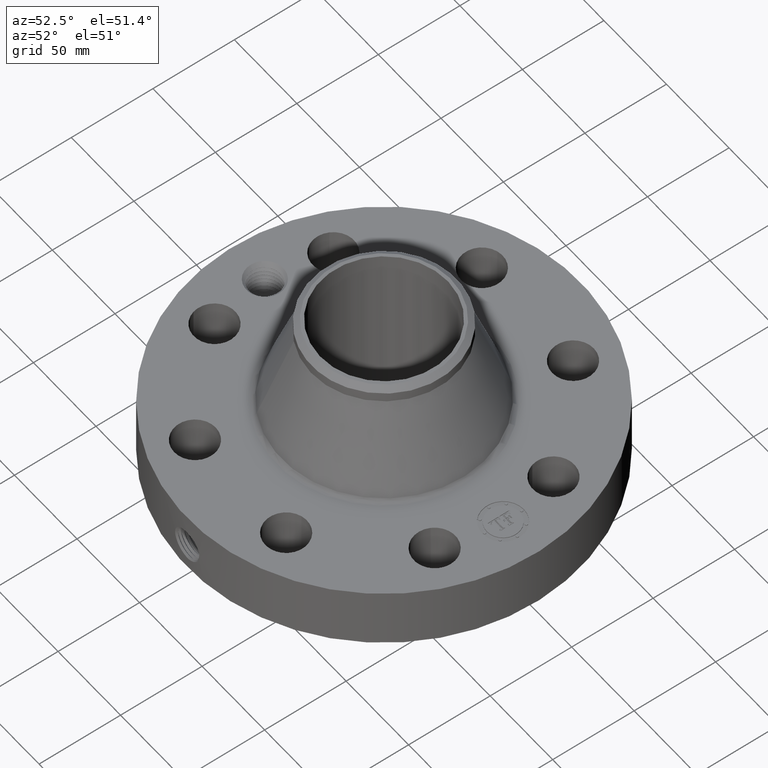
[diagram: clean part render]
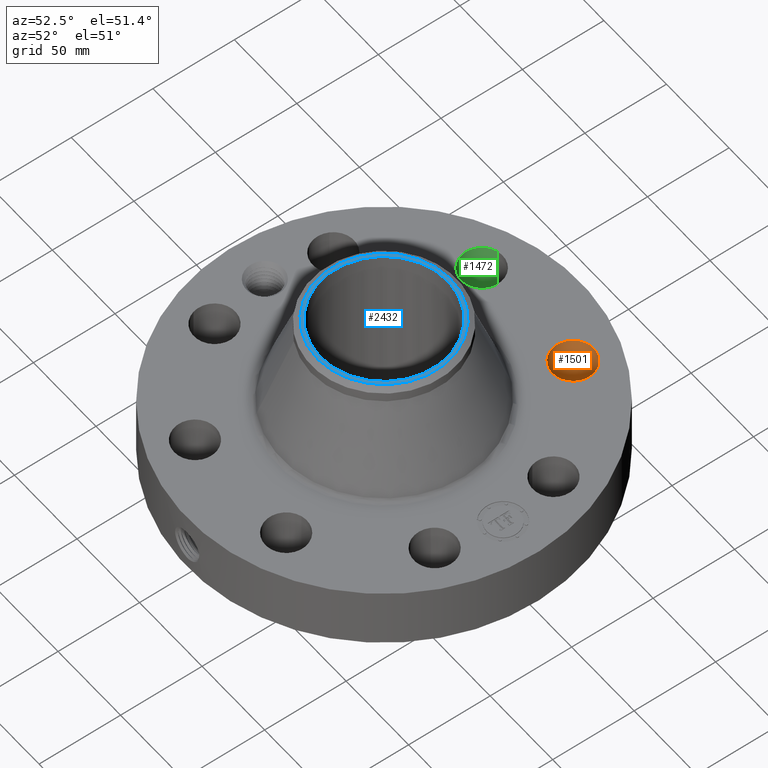
[diagram: same view with three faces highlighted in distinct colors, each labeled with its STEP entity id]
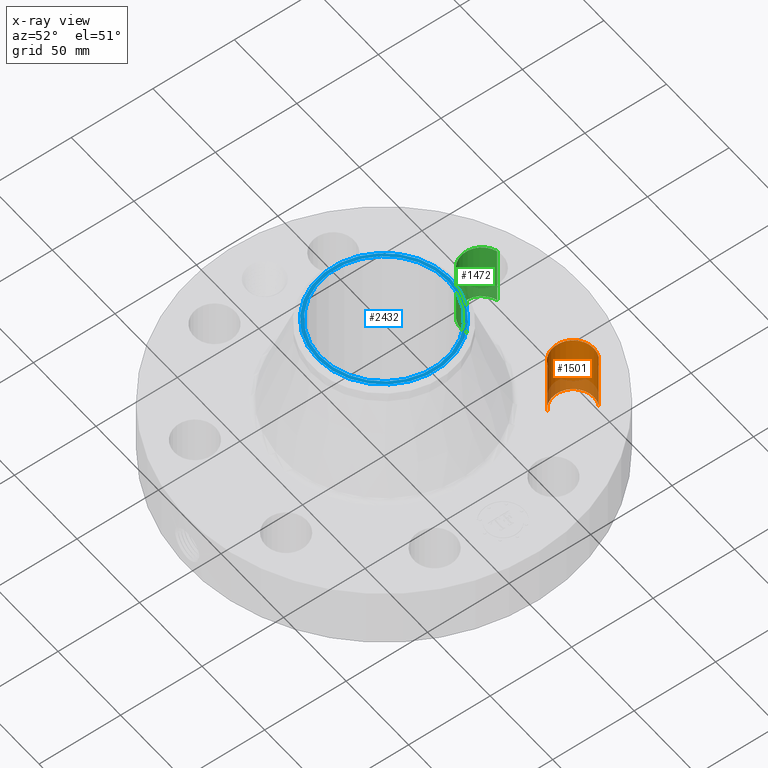
[diagram: x-ray of the same camera — body ghosted, the three highlighted faces saturated]
A machine part, auxiliary view with three faces highlighted in distinct colors.
The next image is the same camera in x-ray (body ghosted, the three faces saturated) — at least one of them is partly hidden behind the body in this view.
Their STEP definitions:

[orange] entity #1501 — the highlighted cylindrical surface (edge-blend (fillet) strip) has radius 12.7 mm, axis along (0, 0, -1).
#338=AXIS2_PLACEMENT_3D('Circle Axis2P3D',#336,#337,$) ;
#652=AXIS2_PLACEMENT_3D('Circle Axis2P3D',#650,#651,$) ;
#1483=AXIS2_PLACEMENT_3D('Cylinder Axis2P3D',#1480,#1481,#1482) ;
#336=CARTESIAN_POINT('Axis2P3D Location',(1.43506287137,3.46454824693,0.250000000001)) ;
#340=CARTESIAN_POINT('Vertex',(1.19535010207,3.02575696598,0.250000000001)) ;
#342=CARTESIAN_POINT('Vertex',(1.67477564068,3.90333952788,0.250000000001)) ;
#645=CARTESIAN_POINT('Vertex',(1.67477564068,3.90333952788,1.75000000001)) ;
#647=CARTESIAN_POINT('Vertex',(1.19535010207,3.02575696598,1.75000000001)) ;
#650=CARTESIAN_POINT('Axis2P3D Location',(1.43506287137,3.46454824693,1.75000000001)) ;
#1480=CARTESIAN_POINT('Axis2P3D Location',(1.43506287137,3.46454824693,1.74606299213)) ;
#1485=CARTESIAN_POINT('Line Origine',(1.19535010207,3.02575696598,1.)) ;
#1490=CARTESIAN_POINT('Line Origine',(1.67477564068,3.90333952788,1.)) ;
#337=DIRECTION('Axis2P3D Direction',(0.,0.,-0.0393700787402)) ;
#651=DIRECTION('Axis2P3D Direction',(0.,0.,-0.0393700787402)) ;
#1481=DIRECTION('Axis2P3D Direction',(0.,0.,-0.0393700787402)) ;
#1482=DIRECTION('Axis2P3D XDirection',(0.0188750212049,0.0345504945626,0.)) ;
#1486=DIRECTION('Vector Direction',(0.,0.,-0.0393700787402)) ;
#1491=DIRECTION('Vector Direction',(0.,0.,-0.0393700787402)) ;
#1487=VECTOR('Line Direction',#1486,0.0393700787402) ;
#1492=VECTOR('Line Direction',#1491,0.0393700787402) ;
#1496=ORIENTED_EDGE('',*,*,#1489,.F.) ;
#1497=ORIENTED_EDGE('',*,*,#344,.T.) ;
#1498=ORIENTED_EDGE('',*,*,#1494,.T.) ;
#1499=ORIENTED_EDGE('',*,*,#654,.F.) ;
#1501=ADVANCED_FACE('PartBody',(#1500),#1484,.F.) ;
#339=CIRCLE('generated circle',#338,0.500000000002) ;
#653=CIRCLE('generated circle',#652,0.500000000002) ;
#1484=CYLINDRICAL_SURFACE('generated cylinder',#1483,0.500000000002) ;
#344=EDGE_CURVE('',#341,#343,#339,.T.) ;
#654=EDGE_CURVE('',#648,#646,#653,.T.) ;
#1489=EDGE_CURVE('',#341,#648,#1488,.F.) ;
#1494=EDGE_CURVE('',#343,#646,#1493,.F.) ;
#1495=EDGE_LOOP('',(#1496,#1497,#1498,#1499)) ;
#1500=FACE_OUTER_BOUND('',#1495,.T.) ;
#1488=LINE('Line',#1485,#1487) ;
#1493=LINE('Line',#1490,#1492) ;
#341=VERTEX_POINT('',#340) ;
#343=VERTEX_POINT('',#342) ;
#646=VERTEX_POINT('',#645) ;
#648=VERTEX_POINT('',#647) ;

[blue] entity #2432 — the highlighted planar face has unit normal (0, 0, -1).
#1215=AXIS2_PLACEMENT_3D('Circle Axis2P3D',#1213,#1214,$) ;
#1283=AXIS2_PLACEMENT_3D('Circle Axis2P3D',#1281,#1282,$) ;
#2408=AXIS2_PLACEMENT_3D('Plane Axis2P3D',#2405,#2406,#2407) ;
#2412=AXIS2_PLACEMENT_3D('Circle Axis2P3D',#2410,#2411,$) ;
#2421=AXIS2_PLACEMENT_3D('Circle Axis2P3D',#2419,#2420,$) ;
#1213=CARTESIAN_POINT('Axis2P3D Location',(0.,0.,4.25000000002)) ;
#1217=CARTESIAN_POINT('Vertex',(0.735438776222,1.34621164995,4.25000000002)) ;
#1219=CARTESIAN_POINT('Vertex',(-0.735438776222,-1.34621164995,4.25000000002)) ;
#1281=CARTESIAN_POINT('Axis2P3D Location',(0.,0.,4.25000000002)) ;
#2405=CARTESIAN_POINT('Axis2P3D Location',(0.,1.75000000001,4.25000000002)) ;
#2410=CARTESIAN_POINT('Axis2P3D Location',(0.,0.,4.25000000002)) ;
#2414=CARTESIAN_POINT('Vertex',(0.773188818632,-1.41531263907,4.25000000002)) ;
#2416=CARTESIAN_POINT('Vertex',(-0.773188818632,1.41531263907,4.25000000002)) ;
#2419=CARTESIAN_POINT('Axis2P3D Location',(0.,0.,4.25000000002)) ;
#1214=DIRECTION('Axis2P3D Direction',(0.,0.,-0.0393700787402)) ;
#1282=DIRECTION('Axis2P3D Direction',(0.,0.,-0.0393700787402)) ;
#2406=DIRECTION('Axis2P3D Direction',(0.,0.,-0.0393700787402)) ;
#2407=DIRECTION('Axis2P3D XDirection',(0.0393700787402,0.,0.)) ;
#2411=DIRECTION('Axis2P3D Direction',(0.,0.,-0.0393700787402)) ;
#2420=DIRECTION('Axis2P3D Direction',(0.,0.,-0.0393700787402)) ;
#2425=ORIENTED_EDGE('',*,*,#2418,.T.) ;
#2426=ORIENTED_EDGE('',*,*,#2423,.T.) ;
#2429=ORIENTED_EDGE('',*,*,#1285,.T.) ;
#2430=ORIENTED_EDGE('',*,*,#1221,.T.) ;
#2431=FACE_BOUND('',#2428,.T.) ;
#2432=ADVANCED_FACE('PartBody',(#2427,#2431),#2409,.F.) ;
#1216=CIRCLE('generated circle',#1215,1.53400000001) ;
#1284=CIRCLE('generated circle',#1283,1.53400000001) ;
#2413=CIRCLE('generated circle',#2412,1.61274015749) ;
#2422=CIRCLE('generated circle',#2421,1.61274015749) ;
#1221=EDGE_CURVE('',#1218,#1220,#1216,.T.) ;
#1285=EDGE_CURVE('',#1220,#1218,#1284,.T.) ;
#2418=EDGE_CURVE('',#2415,#2417,#2413,.F.) ;
#2423=EDGE_CURVE('',#2417,#2415,#2422,.F.) ;
#2424=EDGE_LOOP('',(#2425,#2426)) ;
#2428=EDGE_LOOP('',(#2429,#2430)) ;
#2427=FACE_OUTER_BOUND('',#2424,.T.) ;
#2409=PLANE('',#2408) ;
#1218=VERTEX_POINT('',#1217) ;
#1220=VERTEX_POINT('',#1219) ;
#2415=VERTEX_POINT('',#2414) ;
#2417=VERTEX_POINT('',#2416) ;

[green] entity #1472 — the highlighted cylindrical surface (edge-blend (fillet) strip) has radius 12.7 mm, axis along (0, 0, -1).
#320=AXIS2_PLACEMENT_3D('Circle Axis2P3D',#318,#319,$) ;
#634=AXIS2_PLACEMENT_3D('Circle Axis2P3D',#632,#633,$) ;
#1454=AXIS2_PLACEMENT_3D('Cylinder Axis2P3D',#1451,#1452,#1453) ;
#318=CARTESIAN_POINT('Axis2P3D Location',(-1.43506287137,3.46454824693,0.250000000001)) ;
#322=CARTESIAN_POINT('Vertex',(-1.2942931058,2.98477343194,0.250000000001)) ;
#324=CARTESIAN_POINT('Vertex',(-1.57583263695,3.94432306193,0.250000000001)) ;
#627=CARTESIAN_POINT('Vertex',(-1.57583263695,3.94432306193,1.75000000001)) ;
#629=CARTESIAN_POINT('Vertex',(-1.2942931058,2.98477343194,1.75000000001)) ;
#632=CARTESIAN_POINT('Axis2P3D Location',(-1.43506287137,3.46454824693,1.75000000001)) ;
#1451=CARTESIAN_POINT('Axis2P3D Location',(-1.43506287137,3.46454824693,1.74606299213)) ;
#1456=CARTESIAN_POINT('Line Origine',(-1.2942931058,2.98477343194,1.)) ;
#1461=CARTESIAN_POINT('Line Origine',(-1.57583263695,3.94432306193,1.)) ;
#319=DIRECTION('Axis2P3D Direction',(0.,0.,-0.0393700787402)) ;
#633=DIRECTION('Axis2P3D Direction',(0.,0.,-0.0393700787402)) ;
#1452=DIRECTION('Axis2P3D Direction',(0.,0.,-0.0393700787402)) ;
#1453=DIRECTION('Axis2P3D XDirection',(-0.0110842335096,0.0377775444876,0.)) ;
#1457=DIRECTION('Vector Direction',(0.,0.,-0.0393700787402)) ;
#1462=DIRECTION('Vector Direction',(0.,0.,-0.0393700787402)) ;
#1458=VECTOR('Line Direction',#1457,0.0393700787402) ;
#1463=VECTOR('Line Direction',#1462,0.0393700787402) ;
#1467=ORIENTED_EDGE('',*,*,#1460,.F.) ;
#1468=ORIENTED_EDGE('',*,*,#326,.T.) ;
#1469=ORIENTED_EDGE('',*,*,#1465,.T.) ;
#1470=ORIENTED_EDGE('',*,*,#636,.F.) ;
#1472=ADVANCED_FACE('PartBody',(#1471),#1455,.F.) ;
#321=CIRCLE('generated circle',#320,0.500000000002) ;
#635=CIRCLE('generated circle',#634,0.500000000002) ;
#1455=CYLINDRICAL_SURFACE('generated cylinder',#1454,0.500000000002) ;
#326=EDGE_CURVE('',#323,#325,#321,.T.) ;
#636=EDGE_CURVE('',#630,#628,#635,.T.) ;
#1460=EDGE_CURVE('',#323,#630,#1459,.F.) ;
#1465=EDGE_CURVE('',#325,#628,#1464,.F.) ;
#1466=EDGE_LOOP('',(#1467,#1468,#1469,#1470)) ;
#1471=FACE_OUTER_BOUND('',#1466,.T.) ;
#1459=LINE('Line',#1456,#1458) ;
#1464=LINE('Line',#1461,#1463) ;
#323=VERTEX_POINT('',#322) ;
#325=VERTEX_POINT('',#324) ;
#628=VERTEX_POINT('',#627) ;
#630=VERTEX_POINT('',#629) ;